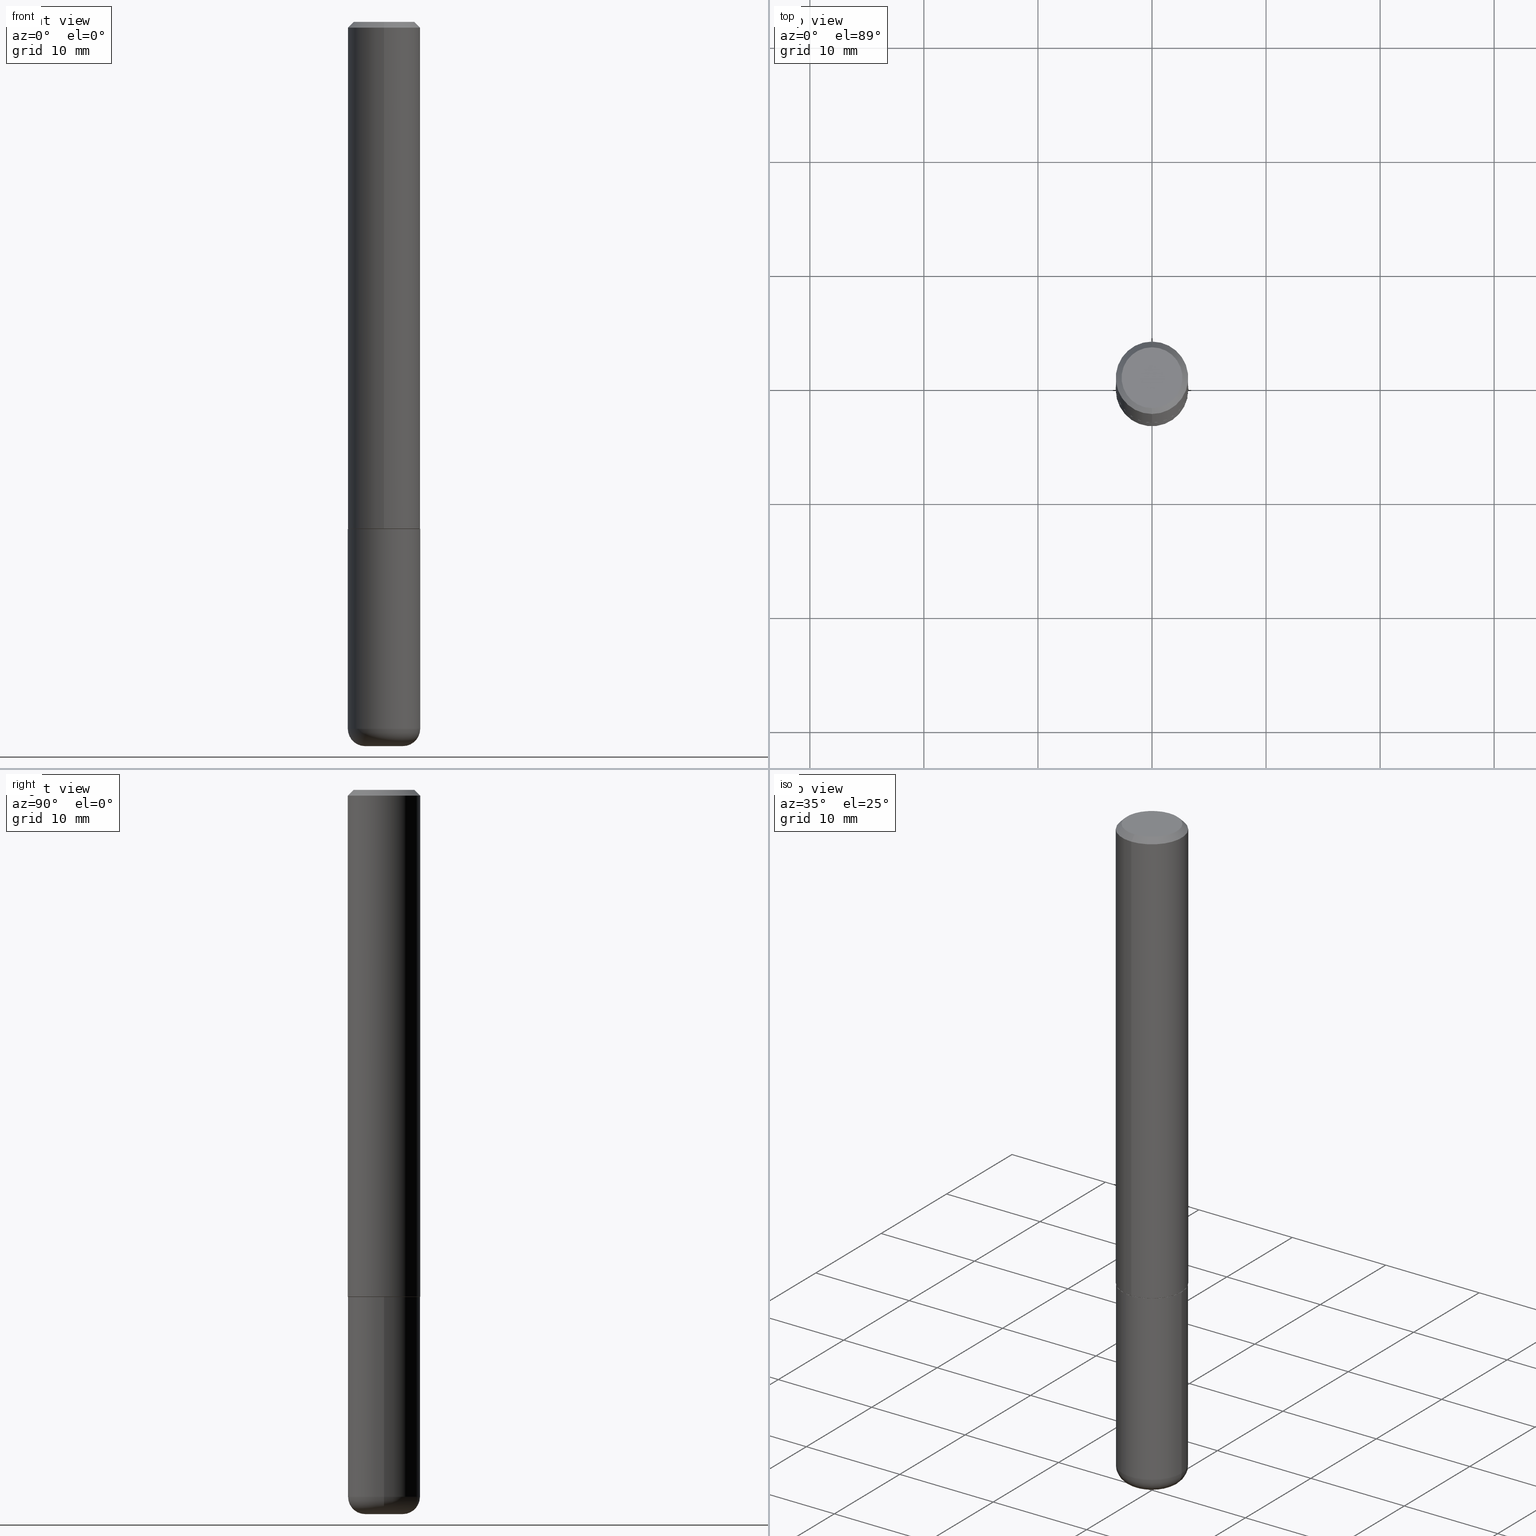
[diagram: canonical four-view strip — front | top / right | iso, engineering-drawing reading convention]
A machine part, canonical four-view strip (front | top / right | iso — engineering-drawing reading convention). The complete STEP part file that produces these views, byte-faithful:
ISO-10303-21;
HEADER;
FILE_DESCRIPTION (( 'STEP AP203' ),
    '1' );
FILE_NAME ('37441.STEP',
    '2024-03-02T01:30:52',
    ( '' ),
    ( '' ),
    'SwSTEP 2.0',
    'SolidWorks 2023',
    '' );
FILE_SCHEMA (( 'CONFIG_CONTROL_DESIGN' ));
ENDSEC;

DATA;
#1 = CARTESIAN_POINT ( 'NONE',  ( 8.728703347107837333E-16, 0.1249999999999999306, -0.02000000000000046185 ) ) ;
#2 = AXIS2_PLACEMENT_3D ( 'NONE', #262, #388, #381 ) ;
#3 = APPROVAL_DATE_TIME ( #287, #135 ) ;
#4 = CARTESIAN_POINT ( 'NONE',  ( 4.279570410823989044E-29, -6.110092342975505460E-15, -1.750000000000000222 ) ) ;
#5 = DIRECTION ( 'NONE',  ( -2.444769625519019670E-29, 3.492482605351917386E-15, 1.000000000000000000 ) ) ;
#6 = ADVANCED_FACE ( 'NONE', ( #374 ), #149, .F. ) ;
#7 = DIRECTION ( 'NONE',  ( -1.000000000000000000, 6.982962677686265922E-15, -4.876176775795935793E-29 ) ) ;
#8 = CIRCLE ( 'NONE', #196, 0.1050000000000001210 ) ;
#9 = LINE ( 'NONE', #329, #259 ) ;
#10 = ADVANCED_FACE ( 'NONE', ( #402 ), #183, .T. ) ;
#11 = PLANE ( 'NONE',  #197 ) ;
#12 = EDGE_CURVE ( 'NONE', #125, #84, #90, .T. ) ;
#13 = CARTESIAN_POINT ( 'NONE',  ( 0.1249999999999999861, -9.392084801488058387E-15, -2.440000000000000391 ) ) ;
#14 = ORIENTED_EDGE ( 'NONE', *, *, #226, .T. ) ;
#15 = CARTESIAN_POINT ( 'NONE',  ( 4.275902075032765006E-29, -6.108352076760502035E-15, -1.748999999999999888 ) ) ;
#16 = CIRCLE ( 'NONE', #134, 0.06500000000000000222 ) ;
#17 = ORIENTED_EDGE ( 'NONE', *, *, #38, .T. ) ;
#18 = ORIENTED_EDGE ( 'NONE', *, *, #261, .F. ) ;
#19 = COORDINATED_UNIVERSAL_TIME_OFFSET ( 5, 0, .BEHIND. ) ;
#20 = EDGE_LOOP ( 'NONE', ( #243, #346, #281, #78 ) ) ;
#21 = PERSON_AND_ORGANIZATION ( #367, #266 ) ;
#22 = ORIENTED_EDGE ( 'NONE', *, *, #116, .F. ) ;
#23 = AXIS2_PLACEMENT_3D ( 'NONE', #130, #255, #166 ) ;
#24 = CARTESIAN_POINT ( 'NONE',  ( 0.000000000000000000, 0.000000000000000000, 0.000000000000000000 ) ) ;
#25 = ORIENTED_EDGE ( 'NONE', *, *, #220, .T. ) ;
#26 = CARTESIAN_POINT ( 'NONE',  ( 8.810729923425669213E-16, 0.1239999999999938790, -1.750000000000000444 ) ) ;
#27 = ORIENTED_EDGE ( 'NONE', *, *, #145, .F. ) ;
#28 = CALENDAR_DATE ( 2024, 1, 3 ) ;
#29 = CARTESIAN_POINT ( 'NONE',  ( -8.658873720330540358E-16, -0.1240000000000061053, -1.749999999999999334 ) ) ;
#30 = VECTOR ( 'NONE', #339, 39.37007874015748143 ) ;
#31 = SECURITY_CLASSIFICATION ( '', '', #97 ) ;
#32 = DIRECTION ( 'NONE',  ( -2.444769625519019670E-29, 3.492482605351917386E-15, 1.000000000000000000 ) ) ;
#33 = DIRECTION ( 'NONE',  ( 1.000000000000000000, -6.982962677686262766E-15, 0.000000000000000000 ) ) ;
#34 = DIRECTION ( 'NONE',  ( -2.445468806185136597E-29, 3.491481338843145583E-15, 1.000000000000000000 ) ) ;
#35 = COORDINATED_UNIVERSAL_TIME_OFFSET ( 5, 0, .BEHIND. ) ;
#36 = LOCAL_TIME ( 20, 30, 52.00000000000000000, #163 ) ;
#37 = LINE ( 'NONE', #1, #153 ) ;
#38 = EDGE_CURVE ( 'NONE', #394, #221, #60, .T. ) ;
#39 = DIRECTION ( 'NONE',  ( -2.445468806185136597E-29, 3.491481338843145583E-15, 1.000000000000000000 ) ) ;
#40 = CARTESIAN_POINT ( 'NONE',  ( 4.275902075032765006E-29, -6.108352076760502035E-15, -1.748999999999999888 ) ) ;
#41 = EDGE_LOOP ( 'NONE', ( #297, #188 ) ) ;
#42 = PRODUCT_DEFINITION ( 'UNKNOWN', '', #304, #416 ) ;
#43 = ADVANCED_FACE ( 'NONE', ( #185 ), #160, .F. ) ;
#44 = APPROVAL_PERSON_ORGANIZATION ( #401, #307, #305 ) ;
#45 = CARTESIAN_POINT ( 'NONE',  ( 4.279570410823989044E-29, -6.110092342975505460E-15, -1.750000000000000222 ) ) ;
#46 = VERTEX_POINT ( 'NONE', #75 ) ;
#47 = MANIFOLD_SOLID_BREP ( 'Body-Move/Copy2[2]', #202 ) ;
#48 = CARTESIAN_POINT ( 'NONE',  ( 4.278346844658283722E-29, -6.111844559365854735E-15, -1.750000000000000000 ) ) ;
#49 = DIRECTION ( 'NONE',  ( -2.445468806185136597E-29, 3.491481338843145583E-15, 1.000000000000000000 ) ) ;
#50 = AXIS2_PLACEMENT_3D ( 'NONE', #258, #69, #382 ) ;
#51 = VERTEX_POINT ( 'NONE', #356 ) ;
#52 = LOCAL_TIME ( 20, 30, 52.00000000000000000, #19 ) ;
#53 = CALENDAR_DATE ( 2024, 1, 3 ) ;
#54 = DIRECTION ( 'NONE',  ( -6.982962677686265922E-15, -1.000000000000000000, 4.406206441393973340E-15 ) ) ;
#55 = DIRECTION ( 'NONE',  ( 1.000000000000000000, 0.000000000000000000, 0.000000000000000000 ) ) ;
#56 = EDGE_LOOP ( 'NONE', ( #27, #25, #17, #264 ) ) ;
#57 = ADVANCED_FACE ( 'NONE', ( #418 ), #354, .T. ) ;
#58 =( LENGTH_UNIT ( ) NAMED_UNIT ( * ) SI_UNIT ( $, .METRE. ) );
#59 = PRODUCT_RELATED_PRODUCT_CATEGORY ( 'detail', '', ( #76 ) ) ;
#60 = LINE ( 'NONE', #372, #30 ) ;
#61 = LOCAL_TIME ( 20, 30, 52.00000000000000000, #242 ) ;
#62 =( NAMED_UNIT ( * ) PLANE_ANGLE_UNIT ( ) SI_UNIT ( $, .RADIAN. ) );
#63 = EDGE_LOOP ( 'NONE', ( #314, #254, #158, #207 ) ) ;
#64 = PERSON_AND_ORGANIZATION ( #367, #266 ) ;
#65 = ORIENTED_EDGE ( 'NONE', *, *, #347, .T. ) ;
#66 = DIRECTION ( 'NONE',  ( -2.445468806185136877E-29, 3.491481338843145188E-15, 1.000000000000000000 ) ) ;
#67 = CIRCLE ( 'NONE', #165, 0.1250000000000000000 ) ;
#68 = AXIS2_PLACEMENT_3D ( 'NONE', #15, #357, #205 ) ;
#69 = DIRECTION ( 'NONE',  ( -2.445468806185136597E-29, 3.491481338843145583E-15, 1.000000000000000000 ) ) ;
#70 = DIRECTION ( 'NONE',  ( 1.000000000000000000, -6.982962677686265133E-15, 4.883557194083112340E-29 ) ) ;
#71 = EDGE_CURVE ( 'NONE', #398, #224, #210, .T. ) ;
#72 = DIRECTION ( 'NONE',  ( -6.982962677686266711E-15, -1.000000000000000000, 3.492482605351917386E-15 ) ) ;
#73 = AXIS2_PLACEMENT_3D ( 'NONE', #360, #240, #270 ) ;
#74 = AXIS2_PLACEMENT_3D ( 'NONE', #168, #294, #80 ) ;
#75 = CARTESIAN_POINT ( 'NONE',  ( -8.728703347107422194E-16, -0.1250000000000063560, -1.748999999999999222 ) ) ;
#76 = PRODUCT ( '37441', '37441', '', ( #373 ) ) ;
#77 = CARTESIAN_POINT ( 'NONE',  ( 8.030407079339212239E-16, 0.1050000000000001210, -4.690498403409406824E-16 ) ) ;
#78 = ORIENTED_EDGE ( 'NONE', *, *, #396, .F. ) ;
#79 = ADVANCED_FACE ( 'NONE', ( #101 ), #103, .T. ) ;
#80 = DIRECTION ( 'NONE',  ( 1.000000000000000000, -6.982962677686266711E-15, 4.876176775795935793E-29 ) ) ;
#81 = EDGE_LOOP ( 'NONE', ( #156, #179, #201, #22 ) ) ;
#82 = AXIS2_PLACEMENT_3D ( 'NONE', #395, #267, #7 ) ;
#83 = CARTESIAN_POINT ( 'NONE',  ( 8.881784197001260212E-16, 0.1250000000000001110, -4.365603256689900677E-16 ) ) ;
#84 = VERTEX_POINT ( 'NONE', #285 ) ;
#85 = CARTESIAN_POINT ( 'NONE',  ( 7.332110811570587146E-16, 0.1050000000000001210, -4.178802569514461450E-16 ) ) ;
#86 = DIRECTION ( 'NONE',  ( -2.444769625519019670E-29, 3.492482605351917386E-15, 1.000000000000000000 ) ) ;
#87 = EDGE_CURVE ( 'NONE', #412, #221, #328, .T. ) ;
#88 = UNCERTAINTY_MEASURE_WITH_UNIT (LENGTH_MEASURE( 1.000000000000000082E-05 ), #333, 'distance_accuracy_value', 'NONE');
#89 = DIRECTION ( 'NONE',  ( 0.000000000000000000, 0.000000000000000000, 1.000000000000000000 ) ) ;
#90 = CIRCLE ( 'NONE', #349, 0.1239999999999999991 ) ;
#91 = CIRCLE ( 'NONE', #68, 0.1250000000000002498 ) ;
#92 = CARTESIAN_POINT ( 'NONE',  ( 4.279570410823989044E-29, -6.110092342975505460E-15, -1.750000000000000222 ) ) ;
#93 =( NAMED_UNIT ( * ) SI_UNIT ( $, .STERADIAN. ) SOLID_ANGLE_UNIT ( ) );
#94 = ORIENTED_EDGE ( 'NONE', *, *, #331, .F. ) ;
#95 = EDGE_CURVE ( 'NONE', #334, #380, #389, .T. ) ;
#96 = ORIENTED_EDGE ( 'NONE', *, *, #321, .T. ) ;
#97 = SECURITY_CLASSIFICATION_LEVEL ( 'unclassified' ) ;
#98 = EDGE_LOOP ( 'NONE', ( #186, #119 ) ) ;
#99 = ADVANCED_BREP_SHAPE_REPRESENTATION ( '37441', ( #318, #47, #184 ), #120 ) ;
#100 = ORIENTED_EDGE ( 'NONE', *, *, #38, .F. ) ;
#101 = FACE_OUTER_BOUND ( 'NONE', #215, .T. ) ;
#102 = DATE_AND_TIME ( #319, #36 ) ;
#103 = CYLINDRICAL_SURFACE ( 'NONE', #390, 0.1250000000000001110 ) ;
#104 = AXIS2_PLACEMENT_3D ( 'NONE', #250, #177, #344 ) ;
#105 = SHAPE_DEFINITION_REPRESENTATION ( #332, #99 ) ;
#106 = CYLINDRICAL_SURFACE ( 'NONE', #23, 0.1250000000000000000 ) ;
#107 = DIRECTION ( 'NONE',  ( 7.105427357601001859E-15, 1.000000000000000000, -3.491481338843145583E-15 ) ) ;
#108 = DIRECTION ( 'NONE',  ( 4.937700262164541731E-15, 0.7071067811865442421, -0.7071067811865507924 ) ) ;
#109 = CIRCLE ( 'NONE', #154, 0.1239999999999999991 ) ;
#110 = FACE_OUTER_BOUND ( 'NONE', #41, .T. ) ;
#111 = DIRECTION ( 'NONE',  ( -2.445468806185136597E-29, 3.491481338843145583E-15, 1.000000000000000000 ) ) ;
#112 = DIRECTION ( 'NONE',  ( -6.982962677686266711E-15, -1.000000000000000000, 3.491481338843145583E-15 ) ) ;
#113 = AXIS2_PLACEMENT_3D ( 'NONE', #247, #218, #213 ) ;
#114 = LOCAL_TIME ( 20, 30, 52.00000000000000000, #182 ) ;
#115 = CARTESIAN_POINT ( 'NONE',  ( 0.06500000000000000222, -9.182595921157471648E-15, -2.500000000000000000 ) ) ;
#116 = EDGE_CURVE ( 'NONE', #359, #398, #37, .T. ) ;
#117 = FACE_OUTER_BOUND ( 'NONE', #248, .T. ) ;
#118 = CALENDAR_DATE ( 2024, 1, 3 ) ;
#119 = ORIENTED_EDGE ( 'NONE', *, *, #87, .T. ) ;
#120 =( GEOMETRIC_REPRESENTATION_CONTEXT ( 3 ) GLOBAL_UNCERTAINTY_ASSIGNED_CONTEXT ( ( #88 ) ) GLOBAL_UNIT_ASSIGNED_CONTEXT ( ( #333, #62, #93 ) ) REPRESENTATION_CONTEXT ( 'NONE', 'WORKASPACE' ) );
#121 = ORIENTED_EDGE ( 'NONE', *, *, #277, .T. ) ;
#122 = CC_DESIGN_PERSON_AND_ORGANIZATION_ASSIGNMENT ( #313, #311, ( #304 ) ) ;
#123 = ORIENTED_EDGE ( 'NONE', *, *, #417, .F. ) ;
#124 = APPROVAL_DATE_TIME ( #403, #279 ) ;
#125 = VERTEX_POINT ( 'NONE', #29 ) ;
#126 = APPLICATION_PROTOCOL_DEFINITION ( 'international standard', 'config_control_design', 1994, #257 ) ;
#127 = EDGE_LOOP ( 'NONE', ( #123, #363, #309, #407 ) ) ;
#128 = CIRCLE ( 'NONE', #176, 0.1250000000000000000 ) ;
#129 = APPROVAL_PERSON_ORGANIZATION ( #150, #279, #217 ) ;
#130 = CARTESIAN_POINT ( 'NONE',  ( 0.000000000000000000, 0.000000000000000000, 0.000000000000000000 ) ) ;
#131 = DIRECTION ( 'NONE',  ( -6.982962677686266711E-15, -1.000000000000000000, 3.492482605351917386E-15 ) ) ;
#132 = DIRECTION ( 'NONE',  ( -2.445468806185136597E-29, 3.491481338843145583E-15, 1.000000000000000000 ) ) ;
#133 = ADVANCED_FACE ( 'NONE', ( #256 ), #209, .T. ) ;
#134 = AXIS2_PLACEMENT_3D ( 'NONE', #387, #39, #296 ) ;
#135 = APPROVAL ( #223, 'UNSPECIFIED' ) ;
#136 = DIRECTION ( 'NONE',  ( -2.444769625519019670E-29, 3.492482605351917386E-15, 1.000000000000000000 ) ) ;
#137 = DIRECTION ( 'NONE',  ( -2.444769625519019670E-29, 3.492482605351917386E-15, 1.000000000000000000 ) ) ;
#138 = PLANE ( 'NONE',  #82 ) ;
#139 = CC_DESIGN_SECURITY_CLASSIFICATION ( #31, ( #304 ) ) ;
#140 = DIRECTION ( 'NONE',  ( -2.444769625519019670E-29, 3.492482605351917386E-15, 1.000000000000000000 ) ) ;
#141 = ORIENTED_EDGE ( 'NONE', *, *, #232, .F. ) ;
#142 = DIRECTION ( 'NONE',  ( -2.444769625519019670E-29, 3.492482605351917386E-15, 1.000000000000000000 ) ) ;
#143 = LINE ( 'NONE', #200, #295 ) ;
#144 = ORIENTED_EDGE ( 'NONE', *, *, #351, .F. ) ;
#145 = EDGE_CURVE ( 'NONE', #380, #412, #284, .T. ) ;
#146 = AXIS2_PLACEMENT_3D ( 'NONE', #45, #49, #263 ) ;
#147 = DIRECTION ( 'NONE',  ( -2.444769625519019670E-29, 3.492482605351917386E-15, 1.000000000000000000 ) ) ;
#148 = ORIENTED_EDGE ( 'NONE', *, *, #151, .F. ) ;
#149 = PLANE ( 'NONE',  #302 ) ;
#150 = PERSON_AND_ORGANIZATION ( #367, #266 ) ;
#151 = EDGE_CURVE ( 'NONE', #359, #51, #342, .T. ) ;
#152 = CARTESIAN_POINT ( 'NONE',  ( 4.278346844658283722E-29, -6.111844559365854735E-15, -1.750000000000000000 ) ) ;
#153 = VECTOR ( 'NONE', #108, 39.37007874015748143 ) ;
#154 = AXIS2_PLACEMENT_3D ( 'NONE', #236, #86, #173 ) ;
#155 = EDGE_LOOP ( 'NONE', ( #315, #14, #96, #337 ) ) ;
#156 = ORIENTED_EDGE ( 'NONE', *, *, #187, .F. ) ;
#157 = PERSON_AND_ORGANIZATION ( #367, #266 ) ;
#158 = ORIENTED_EDGE ( 'NONE', *, *, #338, .F. ) ;
#159 = CC_DESIGN_PERSON_AND_ORGANIZATION_ASSIGNMENT ( #21, #280, ( #76 ) ) ;
#160 = PLANE ( 'NONE',  #2 ) ;
#161 = CARTESIAN_POINT ( 'NONE',  ( 4.889539251038044560E-31, -6.984965210703842315E-17, -0.02000000000000002470 ) ) ;
#162 = DIRECTION ( 'NONE',  ( -2.445468806185136597E-29, 3.491481338843145583E-15, 1.000000000000000000 ) ) ;
#163 = COORDINATED_UNIVERSAL_TIME_OFFSET ( 5, 0, .BEHIND. ) ;
#164 = DIRECTION ( 'NONE',  ( 1.000000000000000000, -6.982962677686262766E-15, 0.000000000000000000 ) ) ;
#165 = AXIS2_PLACEMENT_3D ( 'NONE', #322, #34, #164 ) ;
#166 = DIRECTION ( 'NONE',  ( 1.000000000000000000, -6.982962677686266711E-15, 4.876176775795935793E-29 ) ) ;
#167 = CARTESIAN_POINT ( 'NONE',  ( 4.889539251038044560E-31, -6.984965210703842315E-17, -0.02000000000000002470 ) ) ;
#168 = CARTESIAN_POINT ( 'NONE',  ( 0.000000000000000000, 0.000000000000000000, 0.000000000000000000 ) ) ;
#169 = AXIS2_PLACEMENT_3D ( 'NONE', #415, #320, #131 ) ;
#170 = CC_DESIGN_APPROVAL ( #307, ( #42 ) ) ;
#171 = CARTESIAN_POINT ( 'NONE',  ( 8.728703347107837333E-16, 0.1249999999999999306, -0.02000000000000046185 ) ) ;
#172 = ADVANCED_FACE ( 'NONE', ( #350 ), #189, .T. ) ;
#173 = DIRECTION ( 'NONE',  ( -6.982962677686265922E-15, -1.000000000000000000, 4.406206441393973340E-15 ) ) ;
#174 = ORIENTED_EDGE ( 'NONE', *, *, #116, .T. ) ;
#175 = DIRECTION ( 'NONE',  ( -6.982962677686265133E-15, -1.000000000000000000, 4.370956789862812472E-15 ) ) ;
#176 = AXIS2_PLACEMENT_3D ( 'NONE', #167, #142, #391 ) ;
#177 = DIRECTION ( 'NONE',  ( 2.444769625519019670E-29, -3.492482605351917386E-15, -1.000000000000000000 ) ) ;
#178 = APPROVAL_STATUS ( 'not_yet_approved' ) ;
#179 = ORIENTED_EDGE ( 'NONE', *, *, #351, .T. ) ;
#180 = FACE_OUTER_BOUND ( 'NONE', #341, .T. ) ;
#181 = DIRECTION ( 'NONE',  ( -2.444769625519019670E-29, 3.492482605351917386E-15, 1.000000000000000000 ) ) ;
#182 = COORDINATED_UNIVERSAL_TIME_OFFSET ( 5, 0, .BEHIND. ) ;
#183 = CONICAL_SURFACE ( 'NONE', #113, 0.1250000000000000000, 0.7853981633974471688 ) ;
#184 = AXIS2_PLACEMENT_3D ( 'NONE', #24, #89, #55 ) ;
#185 = FACE_OUTER_BOUND ( 'NONE', #301, .T. ) ;
#186 = ORIENTED_EDGE ( 'NONE', *, *, #232, .T. ) ;
#187 = EDGE_CURVE ( 'NONE', #51, #359, #8, .T. ) ;
#188 = ORIENTED_EDGE ( 'NONE', *, *, #187, .T. ) ;
#189 = TOROIDAL_SURFACE ( 'NONE', #377, 0.06500000000000000222, 0.05999999999999995615 ) ;
#190 = DIRECTION ( 'NONE',  ( -2.444769625519019670E-29, 3.492482605351917386E-15, 1.000000000000000000 ) ) ;
#191 = CC_DESIGN_APPROVAL ( #279, ( #304 ) ) ;
#192 = ADVANCED_FACE ( 'NONE', ( #317 ), #106, .T. ) ;
#193 = PERSON_AND_ORGANIZATION_ROLE ( 'classification_officer' ) ;
#194 = DIRECTION ( 'NONE',  ( -6.982962677686265922E-15, -1.000000000000000000, 4.406206441393973340E-15 ) ) ;
#195 = CARTESIAN_POINT ( 'NONE',  ( 5.966943887091733341E-29, -8.519214466777275048E-15, -2.440000000000000391 ) ) ;
#196 = AXIS2_PLACEMENT_3D ( 'NONE', #324, #190, #386 ) ;
#197 = AXIS2_PLACEMENT_3D ( 'NONE', #85, #325, #397 ) ;
#198 = DIRECTION ( 'NONE',  ( -6.982962677686265922E-15, -1.000000000000000000, 3.483106191921935554E-15 ) ) ;
#199 = CARTESIAN_POINT ( 'NONE',  ( -8.575622497214408537E-16, -0.1250000000000000555, -0.01999999999999959102 ) ) ;
#200 = CARTESIAN_POINT ( 'NONE',  ( -8.658873720330540358E-16, -0.1240000000000061053, -1.749999999999999334 ) ) ;
#201 = ORIENTED_EDGE ( 'NONE', *, *, #261, .T. ) ;
#202 = CLOSED_SHELL ( 'NONE', ( #203, #79, #10, #410, #57, #379, #43, #293 ) ) ;
#203 = ADVANCED_FACE ( 'NONE', ( #230 ), #385, .T. ) ;
#204 = CC_DESIGN_DATE_AND_TIME_ASSIGNMENT ( #102, #229, ( #31 ) ) ;
#205 = DIRECTION ( 'NONE',  ( -6.982962677686265133E-15, -1.000000000000000000, 4.370956789862812472E-15 ) ) ;
#206 = DIRECTION ( 'NONE',  ( 1.000000000000000000, -6.982962677686272233E-15, 0.000000000000000000 ) ) ;
#207 = ORIENTED_EDGE ( 'NONE', *, *, #321, .F. ) ;
#208 = LINE ( 'NONE', #26, #378 ) ;
#209 = TOROIDAL_SURFACE ( 'NONE', #50, 0.06500000000000000222, 0.05999999999999995615 ) ;
#210 = CIRCLE ( 'NONE', #369, 0.1250000000000000000 ) ;
#211 = CIRCLE ( 'NONE', #253, 0.05999999999999996309 ) ;
#212 = LENGTH_MEASURE_WITH_UNIT ( LENGTH_MEASURE( 0.02539999999999999897 ), #58 );
#213 = DIRECTION ( 'NONE',  ( 6.982962677686265922E-15, 1.000000000000000000, -3.483106191921935554E-15 ) ) ;
#214 = APPROVAL_STATUS ( 'not_yet_approved' ) ;
#215 = EDGE_LOOP ( 'NONE', ( #65, #282, #18, #400 ) ) ;
#216 = DIMENSIONAL_EXPONENTS ( 1.000000000000000000, 0.000000000000000000, 0.000000000000000000, 0.000000000000000000, 0.000000000000000000, 0.000000000000000000, 0.000000000000000000 ) ;
#217 = APPROVAL_ROLE ( '' ) ;
#218 = DIRECTION ( 'NONE',  ( 2.444769625519019670E-29, -3.492482605351917386E-15, -1.000000000000000000 ) ) ;
#219 = PERSON_AND_ORGANIZATION ( #367, #266 ) ;
#220 = EDGE_CURVE ( 'NONE', #380, #394, #67, .T. ) ;
#221 = VERTEX_POINT ( 'NONE', #289 ) ;
#222 = APPLICATION_CONTEXT ( 'configuration controlled 3d designs of mechanical parts and assemblies' ) ;
#223 = APPROVAL_STATUS ( 'not_yet_approved' ) ;
#224 = VERTEX_POINT ( 'NONE', #260 ) ;
#225 = CARTESIAN_POINT ( 'NONE',  ( -0.1250000000000000000, 8.881784197001252323E-16, -6.148668862818632227E-30 ) ) ;
#226 = EDGE_CURVE ( 'NONE', #334, #306, #16, .T. ) ;
#227 = CIRCLE ( 'NONE', #146, 0.1250000000000000000 ) ;
#228 = CARTESIAN_POINT ( 'NONE',  ( 2.501956864421970211E-45, -3.574177598218272952E-31, -1.023391667789888407E-16 ) ) ;
#229 = DATE_TIME_ROLE ( 'classification_date' ) ;
#230 = FACE_OUTER_BOUND ( 'NONE', #20, .T. ) ;
#231 = DIRECTION ( 'NONE',  ( -1.000000000000000000, 7.105427357600995548E-15, 0.000000000000000000 ) ) ;
#232 = EDGE_CURVE ( 'NONE', #221, #412, #227, .T. ) ;
#233 = LINE ( 'NONE', #199, #370 ) ;
#234 = DIRECTION ( 'NONE',  ( -4.851104656540957964E-15, -0.7071067811865491270, -0.7071067811865459074 ) ) ;
#235 = CC_DESIGN_PERSON_AND_ORGANIZATION_ASSIGNMENT ( #219, #193, ( #31 ) ) ;
#236 = CARTESIAN_POINT ( 'NONE',  ( 4.278346844658283722E-29, -6.111844559365854735E-15, -1.750000000000000000 ) ) ;
#237 = AXIS2_PLACEMENT_3D ( 'NONE', #291, #107, #231 ) ;
#238 = CONICAL_SURFACE ( 'NONE', #310, 0.1239999999999999991, 0.7853981633975336552 ) ;
#239 = DIRECTION ( 'NONE',  ( -2.444769625519019670E-29, 3.492482605351917386E-15, 1.000000000000000000 ) ) ;
#240 = DIRECTION ( 'NONE',  ( -2.445468806185136597E-29, 3.491481338843145583E-15, 1.000000000000000000 ) ) ;
#241 = ORIENTED_EDGE ( 'NONE', *, *, #71, .T. ) ;
#242 = COORDINATED_UNIVERSAL_TIME_OFFSET ( 5, 0, .BEHIND. ) ;
#243 = ORIENTED_EDGE ( 'NONE', *, *, #12, .T. ) ;
#244 = AXIS2_PLACEMENT_3D ( 'NONE', #353, #32, #194 ) ;
#245 = APPROVAL_PERSON_ORGANIZATION ( #64, #135, #323 ) ;
#246 = DIRECTION ( 'NONE',  ( 5.024295867788490741E-15, 0.7071067811866103003, 0.7071067811864847341 ) ) ;
#247 = CARTESIAN_POINT ( 'NONE',  ( 4.889539251038044560E-31, -6.984965210703842315E-17, -0.02000000000000002470 ) ) ;
#248 = EDGE_LOOP ( 'NONE', ( #376, #275, #141, #100 ) ) ;
#249 = EDGE_CURVE ( 'NONE', #306, #334, #252, .T. ) ;
#250 = CARTESIAN_POINT ( 'NONE',  ( 4.889539251038044560E-31, -6.984965210703842315E-17, -0.02000000000000002470 ) ) ;
#251 = ORIENTED_EDGE ( 'NONE', *, *, #384, .T. ) ;
#252 = CIRCLE ( 'NONE', #73, 0.06500000000000000222 ) ;
#253 = AXIS2_PLACEMENT_3D ( 'NONE', #393, #112, #206 ) ;
#254 = ORIENTED_EDGE ( 'NONE', *, *, #95, .T. ) ;
#255 = DIRECTION ( 'NONE',  ( -2.445468806185136597E-29, 3.491481338843145583E-15, 1.000000000000000000 ) ) ;
#256 = FACE_OUTER_BOUND ( 'NONE', #63, .T. ) ;
#257 = APPLICATION_CONTEXT ( 'configuration controlled 3d designs of mechanical parts and assemblies' ) ;
#258 = CARTESIAN_POINT ( 'NONE',  ( 5.966943887091733341E-29, -8.519214466777275048E-15, -2.440000000000000391 ) ) ;
#259 = VECTOR ( 'NONE', #140, 39.37007874015748143 ) ;
#260 = CARTESIAN_POINT ( 'NONE',  ( -8.575622497214408537E-16, -0.1250000000000000555, -0.01999999999999959102 ) ) ;
#261 = EDGE_CURVE ( 'NONE', #224, #398, #128, .T. ) ;
#262 = CARTESIAN_POINT ( 'NONE',  ( 4.278346844658284843E-29, -6.111844559365856313E-15, -1.750000000000000222 ) ) ;
#263 = DIRECTION ( 'NONE',  ( 1.000000000000000000, -6.982962677686262766E-15, 0.000000000000000000 ) ) ;
#264 = ORIENTED_EDGE ( 'NONE', *, *, #87, .F. ) ;
#265 = VECTOR ( 'NONE', #362, 39.37007874015748143 ) ;
#266 = ORGANIZATION ( 'UNSPECIFIED', 'UNSPECIFIED', '' ) ;
#267 = DIRECTION ( 'NONE',  ( 2.438088387897960049E-29, -3.491481338843145188E-15, -1.000000000000000000 ) ) ;
#268 = CC_DESIGN_DATE_AND_TIME_ASSIGNMENT ( #411, #406, ( #42 ) ) ;
#269 = FACE_OUTER_BOUND ( 'NONE', #345, .T. ) ;
#270 = DIRECTION ( 'NONE',  ( 1.000000000000000000, -6.982962677686273810E-15, 0.000000000000000000 ) ) ;
#271 = CARTESIAN_POINT ( 'NONE',  ( -0.06500000000000000222, -7.948943307970475008E-15, -2.500000000000000000 ) ) ;
#272 = VERTEX_POINT ( 'NONE', #364 ) ;
#273 = DIRECTION ( 'NONE',  ( 2.438088387897960049E-29, -3.491481338843145188E-15, -1.000000000000000000 ) ) ;
#274 = PERSON_AND_ORGANIZATION_ROLE ( 'creator' ) ;
#275 = ORIENTED_EDGE ( 'NONE', *, *, #145, .T. ) ;
#276 = APPLICATION_PROTOCOL_DEFINITION ( 'international standard', 'config_control_design', 1994, #222 ) ;
#277 = EDGE_CURVE ( 'NONE', #272, #46, #413, .T. ) ;
#278 = ORIENTED_EDGE ( 'NONE', *, *, #71, .F. ) ;
#279 = APPROVAL ( #178, 'UNSPECIFIED' ) ;
#280 = PERSON_AND_ORGANIZATION_ROLE ( 'design_owner' ) ;
#281 = ORIENTED_EDGE ( 'NONE', *, *, #347, .F. ) ;
#282 = ORIENTED_EDGE ( 'NONE', *, *, #331, .T. ) ;
#283 = AXIS2_PLACEMENT_3D ( 'NONE', #40, #239, #175 ) ;
#284 = LINE ( 'NONE', #225, #288 ) ;
#285 = CARTESIAN_POINT ( 'NONE',  ( 8.846257060213681156E-16, 0.1239999999999938790, -1.750000000000000444 ) ) ;
#286 = DIRECTION ( 'NONE',  ( -6.982962677686265133E-15, -1.000000000000000000, 3.492482605351917386E-15 ) ) ;
#287 = DATE_AND_TIME ( #28, #343 ) ;
#288 = VECTOR ( 'NONE', #66, 39.37007874015748143 ) ;
#289 = CARTESIAN_POINT ( 'NONE',  ( 0.1250000000000000000, -6.982962677686288010E-15, -1.750000000000000222 ) ) ;
#290 = EDGE_CURVE ( 'NONE', #84, #125, #109, .T. ) ;
#291 = CARTESIAN_POINT ( 'NONE',  ( -0.06500000000000000222, -8.057361688533210306E-15, -2.440000000000000391 ) ) ;
#292 = LINE ( 'NONE', #83, #265 ) ;
#293 = ADVANCED_FACE ( 'NONE', ( #110 ), #11, .F. ) ;
#294 = DIRECTION ( 'NONE',  ( -2.445468806185136597E-29, 3.491481338843145583E-15, 1.000000000000000000 ) ) ;
#295 = VECTOR ( 'NONE', #327, 39.37007874015748143 ) ;
#296 = DIRECTION ( 'NONE',  ( 1.000000000000000000, -6.982962677686273810E-15, 0.000000000000000000 ) ) ;
#297 = ORIENTED_EDGE ( 'NONE', *, *, #151, .T. ) ;
#298 = FACE_OUTER_BOUND ( 'NONE', #127, .T. ) ;
#299 = EDGE_LOOP ( 'NONE', ( #94, #121, #251, #278 ) ) ;
#300 = DIRECTION ( 'NONE',  ( 1.000000000000000000, -6.982962677686262766E-15, 0.000000000000000000 ) ) ;
#301 = EDGE_LOOP ( 'NONE', ( #312, #409 ) ) ;
#302 = AXIS2_PLACEMENT_3D ( 'NONE', #92, #273, #368 ) ;
#303 = ADVANCED_FACE ( 'NONE', ( #269 ), #138, .T. ) ;
#304 = PRODUCT_DEFINITION_FORMATION_WITH_SPECIFIED_SOURCE ( 'ANY', '', #76, .NOT_KNOWN. ) ;
#305 = APPROVAL_ROLE ( '' ) ;
#306 = VERTEX_POINT ( 'NONE', #115 ) ;
#307 = APPROVAL ( #214, 'UNSPECIFIED' ) ;
#308 = CC_DESIGN_PERSON_AND_ORGANIZATION_ASSIGNMENT ( #371, #375, ( #304 ) ) ;
#309 = ORIENTED_EDGE ( 'NONE', *, *, #396, .T. ) ;
#310 = AXIS2_PLACEMENT_3D ( 'NONE', #48, #147, #358 ) ;
#311 = PERSON_AND_ORGANIZATION_ROLE ( 'creator' ) ;
#312 = ORIENTED_EDGE ( 'NONE', *, *, #12, .F. ) ;
#313 = PERSON_AND_ORGANIZATION ( #367, #266 ) ;
#314 = ORIENTED_EDGE ( 'NONE', *, *, #249, .T. ) ;
#315 = ORIENTED_EDGE ( 'NONE', *, *, #95, .F. ) ;
#316 = CC_DESIGN_APPROVAL ( #135, ( #31 ) ) ;
#317 = FACE_OUTER_BOUND ( 'NONE', #56, .T. ) ;
#318 = MANIFOLD_SOLID_BREP ( 'Body-Move/Copy2[1]', #335 ) ;
#319 = CALENDAR_DATE ( 2024, 1, 3 ) ;
#320 = DIRECTION ( 'NONE',  ( -2.444769625519019670E-29, 3.492482605351917386E-15, 1.000000000000000000 ) ) ;
#321 = EDGE_CURVE ( 'NONE', #306, #394, #211, .T. ) ;
#322 = CARTESIAN_POINT ( 'NONE',  ( 5.966943887091733341E-29, -8.519214466777275048E-15, -2.440000000000000391 ) ) ;
#323 = APPROVAL_ROLE ( '' ) ;
#324 = CARTESIAN_POINT ( 'NONE',  ( 2.501956864421970211E-45, -3.574177598218272952E-31, -1.023391667789888407E-16 ) ) ;
#325 = DIRECTION ( 'NONE',  ( 2.444769625519019109E-29, -3.492482605351917386E-15, -1.000000000000000000 ) ) ;
#326 = CYLINDRICAL_SURFACE ( 'NONE', #74, 0.1250000000000000000 ) ;
#327 = DIRECTION ( 'NONE',  ( -4.937700262164969294E-15, -0.7071067811866054154, 0.7071067811864896191 ) ) ;
#328 = CIRCLE ( 'NONE', #405, 0.1250000000000000000 ) ;
#329 = CARTESIAN_POINT ( 'NONE',  ( -8.728703347107841277E-16, -0.1250000000000001110, 4.365603256689900677E-16 ) ) ;
#330 = CARTESIAN_POINT ( 'NONE',  ( 5.966943887091733341E-29, -8.519214466777275048E-15, -2.440000000000000391 ) ) ;
#331 = EDGE_CURVE ( 'NONE', #272, #398, #292, .T. ) ;
#332 = PRODUCT_DEFINITION_SHAPE ( 'NONE', 'NONE',  #42 ) ;
#333 =( CONVERSION_BASED_UNIT ( 'INCH', #212 ) LENGTH_UNIT ( ) NAMED_UNIT ( #216 ) );
#334 = VERTEX_POINT ( 'NONE', #271 ) ;
#335 = CLOSED_SHELL ( 'NONE', ( #383, #133, #6, #192, #172, #303 ) ) ;
#336 = APPROVAL_DATE_TIME ( #366, #307 ) ;
#337 = ORIENTED_EDGE ( 'NONE', *, *, #220, .F. ) ;
#338 = EDGE_CURVE ( 'NONE', #394, #380, #392, .T. ) ;
#339 = DIRECTION ( 'NONE',  ( -2.445468806185136877E-29, 3.491481338843145188E-15, 1.000000000000000000 ) ) ;
#340 = CALENDAR_DATE ( 2024, 1, 3 ) ;
#341 = EDGE_LOOP ( 'NONE', ( #144, #148, #174, #241 ) ) ;
#342 = CIRCLE ( 'NONE', #355, 0.1050000000000001210 ) ;
#343 = LOCAL_TIME ( 20, 30, 52.00000000000000000, #35 ) ;
#344 = DIRECTION ( 'NONE',  ( 6.982962677686265922E-15, 1.000000000000000000, -3.483106191921935554E-15 ) ) ;
#345 = EDGE_LOOP ( 'NONE', ( #365, #404 ) ) ;
#346 = ORIENTED_EDGE ( 'NONE', *, *, #417, .T. ) ;
#347 = EDGE_CURVE ( 'NONE', #46, #272, #91, .T. ) ;
#348 = CARTESIAN_POINT ( 'NONE',  ( 0.000000000000000000, 0.000000000000000000, 0.000000000000000000 ) ) ;
#349 = AXIS2_PLACEMENT_3D ( 'NONE', #152, #181, #54 ) ;
#350 = FACE_OUTER_BOUND ( 'NONE', #155, .T. ) ;
#351 = EDGE_CURVE ( 'NONE', #51, #224, #233, .T. ) ;
#352 = CC_DESIGN_PERSON_AND_ORGANIZATION_ASSIGNMENT ( #157, #274, ( #42 ) ) ;
#353 = CARTESIAN_POINT ( 'NONE',  ( 4.278346844658283722E-29, -6.111844559365854735E-15, -1.750000000000000000 ) ) ;
#354 = CYLINDRICAL_SURFACE ( 'NONE', #169, 0.1250000000000001110 ) ;
#355 = AXIS2_PLACEMENT_3D ( 'NONE', #228, #136, #286 ) ;
#356 = CARTESIAN_POINT ( 'NONE',  ( -7.889572697437263111E-16, -0.1050000000000001210, 2.643715067829629270E-16 ) ) ;
#357 = DIRECTION ( 'NONE',  ( -2.444769625519019670E-29, 3.492482605351917386E-15, 1.000000000000000000 ) ) ;
#358 = DIRECTION ( 'NONE',  ( -6.982962677686265922E-15, -1.000000000000000000, 4.406206441393973340E-15 ) ) ;
#359 = VERTEX_POINT ( 'NONE', #77 ) ;
#360 = CARTESIAN_POINT ( 'NONE',  ( 6.113672015462842613E-29, -8.728703347107864943E-15, -2.500000000000000000 ) ) ;
#361 = CONICAL_SURFACE ( 'NONE', #104, 0.1250000000000000000, 0.7853981633974471688 ) ;
#362 = DIRECTION ( 'NONE',  ( -2.444769625519019670E-29, 3.492482605351917386E-15, 1.000000000000000000 ) ) ;
#363 = ORIENTED_EDGE ( 'NONE', *, *, #290, .T. ) ;
#364 = CARTESIAN_POINT ( 'NONE',  ( 8.881784197001479121E-16, 0.1249999999999941019, -1.749000000000000332 ) ) ;
#365 = ORIENTED_EDGE ( 'NONE', *, *, #249, .F. ) ;
#366 = DATE_AND_TIME ( #118, #61 ) ;
#367 = PERSON ( 'UNSPECIFIED', 'UNSPECIFIED', 'UNSPECIFIED', ('UNSPECIFIED'), ('UNSPECIFIED'), ('UNSPECIFIED') ) ;
#368 = DIRECTION ( 'NONE',  ( -1.000000000000000000, 6.982962677686265922E-15, -4.876176775795935793E-29 ) ) ;
#369 = AXIS2_PLACEMENT_3D ( 'NONE', #161, #137, #198 ) ;
#370 = VECTOR ( 'NONE', #234, 39.37007874015748143 ) ;
#371 = PERSON_AND_ORGANIZATION ( #367, #266 ) ;
#372 = CARTESIAN_POINT ( 'NONE',  ( 0.1250000000000000000, -8.728703347107833388E-16, 6.095220969744919741E-30 ) ) ;
#373 = MECHANICAL_CONTEXT ( 'NONE', #257, 'mechanical' ) ;
#374 = FACE_OUTER_BOUND ( 'NONE', #98, .T. ) ;
#375 = PERSON_AND_ORGANIZATION_ROLE ( 'design_supplier' ) ;
#376 = ORIENTED_EDGE ( 'NONE', *, *, #338, .T. ) ;
#377 = AXIS2_PLACEMENT_3D ( 'NONE', #195, #132, #70 ) ;
#378 = VECTOR ( 'NONE', #246, 39.37007874015748143 ) ;
#379 = ADVANCED_FACE ( 'NONE', ( #298 ), #238, .T. ) ;
#380 = VERTEX_POINT ( 'NONE', #399 ) ;
#381 = DIRECTION ( 'NONE',  ( -6.982962677686265922E-15, -1.000000000000000000, 3.492482605351917386E-15 ) ) ;
#382 = DIRECTION ( 'NONE',  ( 1.000000000000000000, -6.982962677686265133E-15, 4.883557194083112340E-29 ) ) ;
#383 = ADVANCED_FACE ( 'NONE', ( #117 ), #326, .T. ) ;
#384 = EDGE_CURVE ( 'NONE', #46, #224, #9, .T. ) ;
#385 = CONICAL_SURFACE ( 'NONE', #244, 0.1239999999999999991, 0.7853981633975336552 ) ;
#386 = DIRECTION ( 'NONE',  ( -6.982962677686265133E-15, -1.000000000000000000, 3.492482605351917386E-15 ) ) ;
#387 = CARTESIAN_POINT ( 'NONE',  ( 6.113672015462842613E-29, -8.728703347107864943E-15, -2.500000000000000000 ) ) ;
#388 = DIRECTION ( 'NONE',  ( -2.444769625519019109E-29, 3.492482605351917386E-15, 1.000000000000000000 ) ) ;
#389 = CIRCLE ( 'NONE', #237, 0.05999999999999996309 ) ;
#390 = AXIS2_PLACEMENT_3D ( 'NONE', #348, #5, #72 ) ;
#391 = DIRECTION ( 'NONE',  ( -6.982962677686265922E-15, -1.000000000000000000, 3.483106191921935554E-15 ) ) ;
#392 = CIRCLE ( 'NONE', #414, 0.1250000000000000000 ) ;
#393 = CARTESIAN_POINT ( 'NONE',  ( 0.06500000000000000222, -8.973107040826881753E-15, -2.440000000000000391 ) ) ;
#394 = VERTEX_POINT ( 'NONE', #13 ) ;
#395 = CARTESIAN_POINT ( 'NONE',  ( 6.113672015462842613E-29, -8.728703347107864943E-15, -2.500000000000000000 ) ) ;
#396 = EDGE_CURVE ( 'NONE', #125, #46, #143, .T. ) ;
#397 = DIRECTION ( 'NONE',  ( 6.982962677686265922E-15, 1.000000000000000000, -3.492482605351917386E-15 ) ) ;
#398 = VERTEX_POINT ( 'NONE', #171 ) ;
#399 = CARTESIAN_POINT ( 'NONE',  ( -0.1249999999999999861, -7.631036047077151393E-15, -2.440000000000000391 ) ) ;
#400 = ORIENTED_EDGE ( 'NONE', *, *, #384, .F. ) ;
#401 = PERSON_AND_ORGANIZATION ( #367, #266 ) ;
#402 = FACE_OUTER_BOUND ( 'NONE', #81, .T. ) ;
#403 = DATE_AND_TIME ( #340, #52 ) ;
#404 = ORIENTED_EDGE ( 'NONE', *, *, #226, .F. ) ;
#405 = AXIS2_PLACEMENT_3D ( 'NONE', #4, #162, #33 ) ;
#406 = DATE_TIME_ROLE ( 'creation_date' ) ;
#407 = ORIENTED_EDGE ( 'NONE', *, *, #277, .F. ) ;
#408 = CARTESIAN_POINT ( 'NONE',  ( -0.1250000000000000000, -6.426474985176265022E-15, -1.750000000000000222 ) ) ;
#409 = ORIENTED_EDGE ( 'NONE', *, *, #290, .F. ) ;
#410 = ADVANCED_FACE ( 'NONE', ( #180 ), #361, .T. ) ;
#411 = DATE_AND_TIME ( #53, #114 ) ;
#412 = VERTEX_POINT ( 'NONE', #408 ) ;
#413 = CIRCLE ( 'NONE', #283, 0.1250000000000002498 ) ;
#414 = AXIS2_PLACEMENT_3D ( 'NONE', #330, #111, #300 ) ;
#415 = CARTESIAN_POINT ( 'NONE',  ( 0.000000000000000000, 0.000000000000000000, 0.000000000000000000 ) ) ;
#416 = DESIGN_CONTEXT ( 'detailed design', #222, 'design' ) ;
#417 = EDGE_CURVE ( 'NONE', #84, #272, #208, .T. ) ;
#418 = FACE_OUTER_BOUND ( 'NONE', #299, .T. ) ;
ENDSEC;
END-ISO-10303-21;
